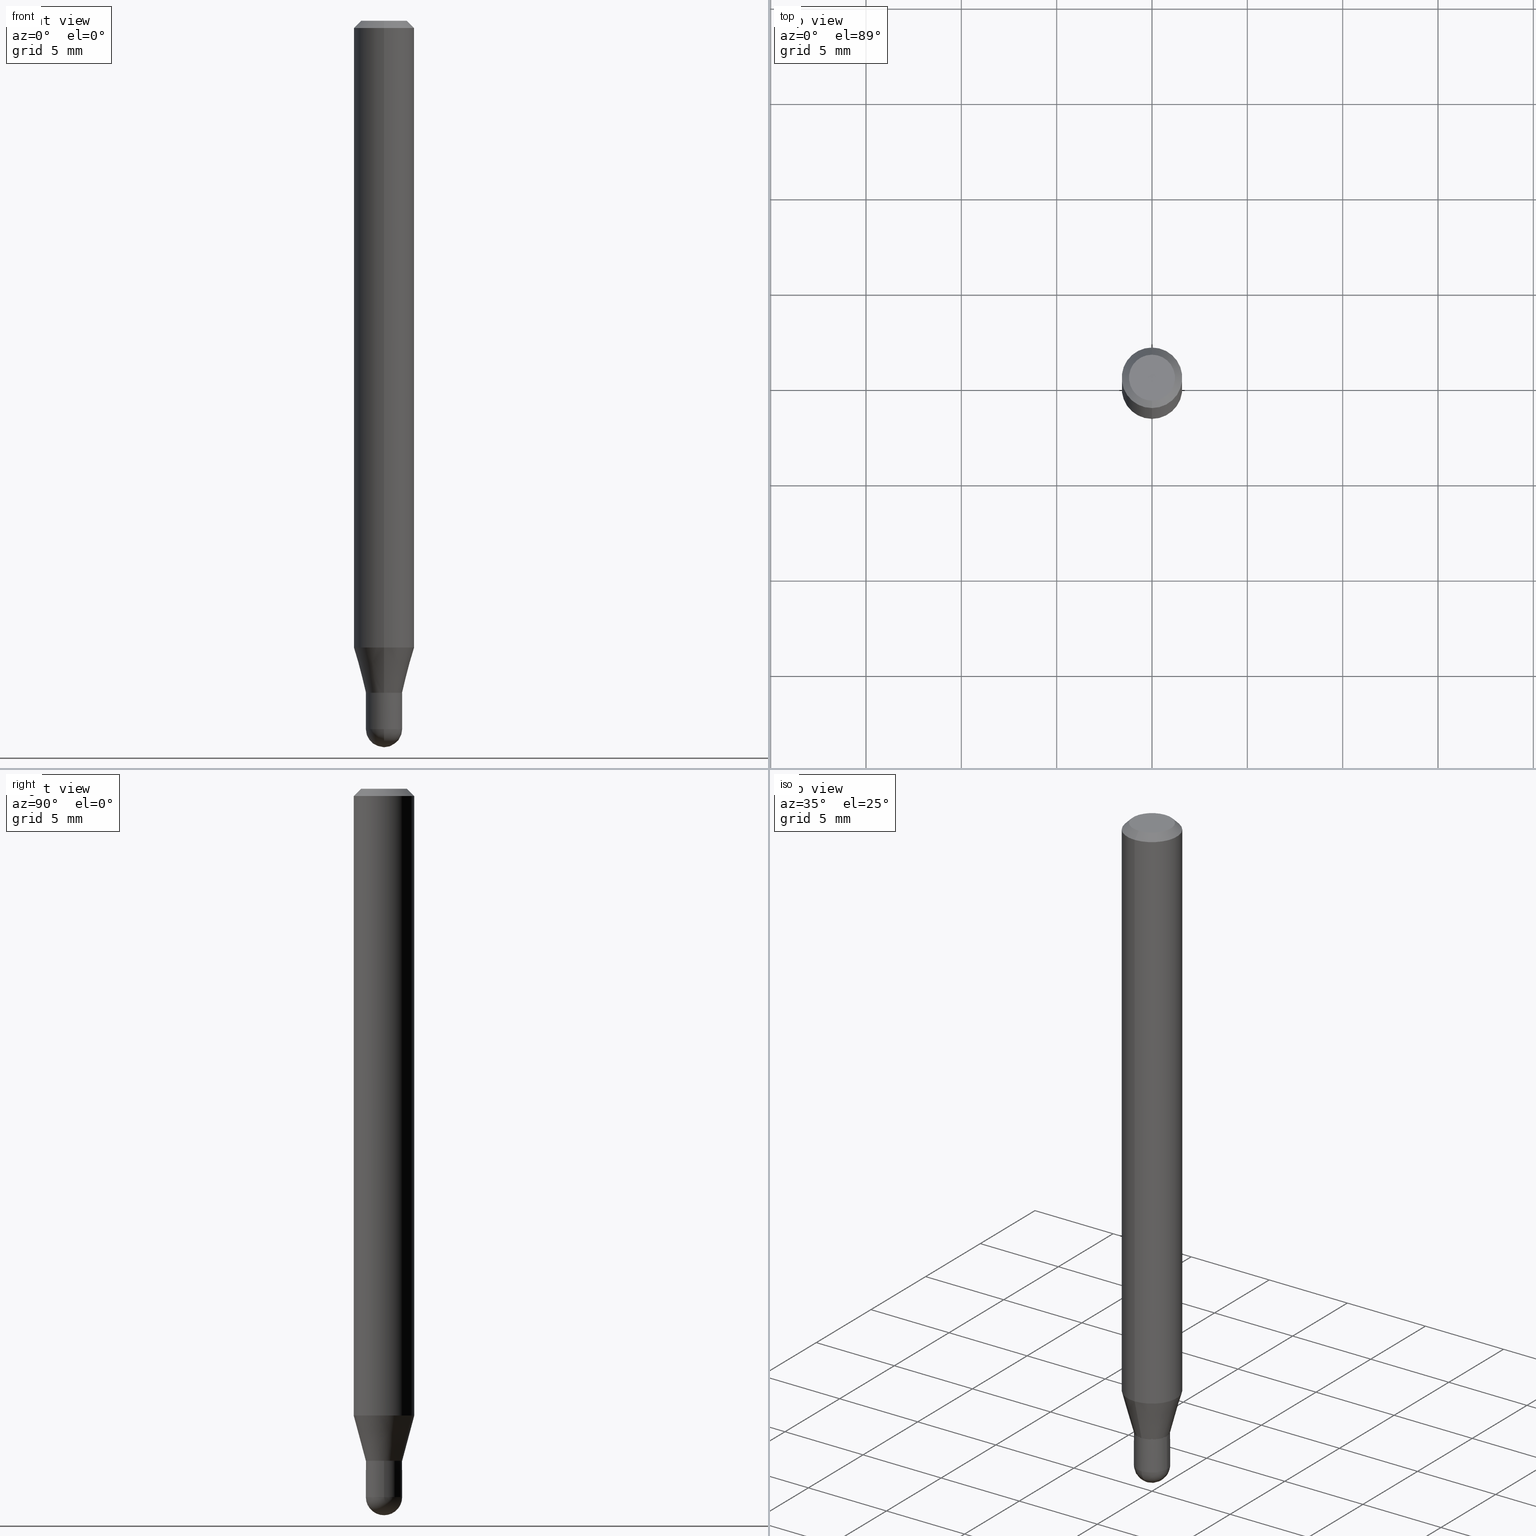
[diagram: canonical four-view strip — front | top / right | iso, engineering-drawing reading convention]
A machine part, canonical four-view strip (front | top / right | iso — engineering-drawing reading convention). The complete STEP part file that produces these views, byte-faithful:
ISO-10303-21;
HEADER;
FILE_DESCRIPTION (( 'STEP AP203' ),
    '1' );
FILE_NAME ('01421.STEP',
    '2024-03-07T20:39:07',
    ( '' ),
    ( '' ),
    'SwSTEP 2.0',
    'SolidWorks 2023',
    '' );
FILE_SCHEMA (( 'CONFIG_CONTROL_DESIGN' ));
ENDSEC;

DATA;
#1 = CARTESIAN_POINT ( 'NONE',  ( -2.583696190743578270E-16, -0.03700000000000483458, -1.387500000000000178 ) ) ;
#2 = VERTEX_POINT ( 'NONE', #26 ) ;
#3 = DIRECTION ( 'NONE',  ( 7.105427357601001859E-15, 1.000000000000000000, 0.000000000000000000 ) ) ;
#4 = ORIENTED_EDGE ( 'NONE', *, *, #382, .F. ) ;
#5 = AXIS2_PLACEMENT_3D ( 'NONE', #431, #33, #112 ) ;
#6 = VECTOR ( 'NONE', #462, 39.37007874015748143 ) ;
#7 = UNCERTAINTY_MEASURE_WITH_UNIT (LENGTH_MEASURE( 1.000000000000000082E-05 ), #63, 'distance_accuracy_value', 'NONE');
#8 = FACE_OUTER_BOUND ( 'NONE', #11, .T. ) ;
#9 = EDGE_LOOP ( 'NONE', ( #284, #276, #115, #368 ) ) ;
#10 = DIRECTION ( 'NONE',  ( -2.445468806185136877E-29, 3.491481338843145188E-15, 1.000000000000000000 ) ) ;
#11 = EDGE_LOOP ( 'NONE', ( #278, #373, #244, #175 ) ) ;
#12 = ORIENTED_EDGE ( 'NONE', *, *, #311, .F. ) ;
#13 = CONICAL_SURFACE ( 'NONE', #299, 0.03699999999999999123, 0.7853981633974781440 ) ;
#14 = DIRECTION ( 'NONE',  ( -2.445502103091854659E-29, 3.491433655777583102E-15, 1.000000000000000000 ) ) ;
#15 = CIRCLE ( 'NONE', #490, 0.03749999999999991535 ) ;
#16 = CARTESIAN_POINT ( 'NONE',  ( 2.664535259100708892E-16, 0.03749999999999507200, -1.387500000000000178 ) ) ;
#17 = EDGE_CURVE ( 'NONE', #122, #365, #19, .T. ) ;
#18 = MECHANICAL_CONTEXT ( 'NONE', #334, 'mechanical' ) ;
#19 = LINE ( 'NONE', #379, #319 ) ;
#20 = DIRECTION ( 'NONE',  ( -2.445502103091854659E-29, 3.491433655777583102E-15, 1.000000000000000000 ) ) ;
#21 = CARTESIAN_POINT ( 'NONE',  ( 3.576498129045762161E-29, -5.106291458058100676E-15, -1.462500000000000133 ) ) ;
#22 = EDGE_CURVE ( 'NONE', #52, #501, #340, .T. ) ;
#23 = MANIFOLD_SOLID_BREP ( 'Body-Move/Copy2[2]', #457 ) ;
#24 = LOCAL_TIME ( 15, 39, 7.000000000000000000, #176 ) ;
#25 = DIRECTION ( 'NONE',  ( -6.982962677686266711E-15, -1.000000000000000000, 3.491433655777582708E-15 ) ) ;
#26 = CARTESIAN_POINT ( 'NONE',  ( -2.618611004131998480E-16, -0.03750000000000520278, -1.462500000000000133 ) ) ;
#27 = ORIENTED_EDGE ( 'NONE', *, *, #504, .F. ) ;
#28 = APPROVAL_ROLE ( '' ) ;
#29 = LINE ( 'NONE', #16, #6 ) ;
#30 = FACE_OUTER_BOUND ( 'NONE', #50, .T. ) ;
#31 = PERSON_AND_ORGANIZATION_ROLE ( 'design_supplier' ) ;
#32 = DIRECTION ( 'NONE',  ( -2.445502103091854659E-29, 3.491433655777583102E-15, 1.000000000000000000 ) ) ;
#33 = DIRECTION ( 'NONE',  ( -2.445502103091854659E-29, 3.491433655777583102E-15, 1.000000000000000000 ) ) ;
#34 = DATE_AND_TIME ( #220, #128 ) ;
#35 = CARTESIAN_POINT ( 'NONE',  ( -3.773273898774340269E-16, -0.04749999999999999362, 1.569805141119898495E-16 ) ) ;
#36 = CARTESIAN_POINT ( 'NONE',  ( 3.840629472727447874E-16, 0.04749999999999999362, -1.747056831868805136E-16 ) ) ;
#37 = AXIS2_PLACEMENT_3D ( 'NONE', #203, #282, #356 ) ;
#38 = AXIS2_PLACEMENT_3D ( 'NONE', #84, #324, #235 ) ;
#39 = CARTESIAN_POINT ( 'NONE',  ( 3.668253154637784266E-31, -5.237150483666377464E-17, -0.01500000000000000812 ) ) ;
#40 = VERTEX_POINT ( 'NONE', #421 ) ;
#41 = CARTESIAN_POINT ( 'NONE',  ( 3.393134168039948742E-29, -4.844364197391397644E-15, -1.387500000000000178 ) ) ;
#42 = EDGE_LOOP ( 'NONE', ( #323, #447, #47, #225 ) ) ;
#43 = DIRECTION ( 'NONE',  ( -6.982962677686265133E-15, -1.000000000000000000, 0.000000000000000000 ) ) ;
#44 = ORIENTED_EDGE ( 'NONE', *, *, #311, .T. ) ;
#45 = CC_DESIGN_APPROVAL ( #369, ( #443 ) ) ;
#46 = CARTESIAN_POINT ( 'NONE',  ( 0.03749999999999999861, -2.618611004132350016E-16, 1.828566290923475922E-30 ) ) ;
#47 = ORIENTED_EDGE ( 'NONE', *, *, #61, .T. ) ;
#48 = EDGE_CURVE ( 'NONE', #333, #52, #294, .T. ) ;
#49 = LINE ( 'NONE', #402, #120 ) ;
#50 = EDGE_LOOP ( 'NONE', ( #12, #476, #83, #78 ) ) ;
#51 = APPLICATION_PROTOCOL_DEFINITION ( 'international standard', 'config_control_design', 1994, #85 ) ;
#52 = VERTEX_POINT ( 'NONE', #384 ) ;
#53 = AXIS2_PLACEMENT_3D ( 'NONE', #349, #104, #232 ) ;
#54 =( NAMED_UNIT ( * ) SI_UNIT ( $, .STERADIAN. ) SOLID_ANGLE_UNIT ( ) );
#55 = CIRCLE ( 'NONE', #301, 0.04749999999999999362 ) ;
#56 = ORIENTED_EDGE ( 'NONE', *, *, #305, .F. ) ;
#57 = EDGE_CURVE ( 'NONE', #40, #381, #29, .T. ) ;
#58 = APPLICATION_PROTOCOL_DEFINITION ( 'international standard', 'config_control_design', 1994, #334 ) ;
#59 = ORIENTED_EDGE ( 'NONE', *, *, #48, .T. ) ;
#60 = ORIENTED_EDGE ( 'NONE', *, *, #131, .F. ) ;
#61 = EDGE_CURVE ( 'NONE', #333, #163, #92, .T. ) ;
#62 = PRODUCT_DEFINITION_FORMATION_WITH_SPECIFIED_SOURCE ( 'ANY', '', #483, .NOT_KNOWN. ) ;
#63 =( CONVERSION_BASED_UNIT ( 'INCH', #95 ) LENGTH_UNIT ( ) NAMED_UNIT ( #271 ) );
#64 = DIRECTION ( 'NONE',  ( -6.982962677686265922E-15, -1.000000000000000000, 4.370956789862821150E-15 ) ) ;
#65 = CYLINDRICAL_SURFACE ( 'NONE', #145, 0.03749999999999999861 ) ;
#66 = ORIENTED_EDGE ( 'NONE', *, *, #412, .F. ) ;
#67 = CALENDAR_DATE ( 2024, 7, 3 ) ;
#68 = FACE_OUTER_BOUND ( 'NONE', #370, .T. ) ;
#69 = AXIS2_PLACEMENT_3D ( 'NONE', #167, #290, #303 ) ;
#70 = DIRECTION ( 'NONE',  ( -2.445502103091854659E-29, 3.491433655777583102E-15, 1.000000000000000000 ) ) ;
#71 = LOCAL_TIME ( 15, 39, 7.000000000000000000, #132 ) ;
#72 = DATE_TIME_ROLE ( 'creation_date' ) ;
#73 = EDGE_CURVE ( 'NONE', #122, #2, #364, .T. ) ;
#74 = DIRECTION ( 'NONE',  ( 1.000000000000000000, -6.982962677686265922E-15, 4.883557194083112901E-29 ) ) ;
#75 = SPHERICAL_SURFACE ( 'NONE', #398, 0.03750000000000017902 ) ;
#76 = EDGE_CURVE ( 'NONE', #270, #193, #434, .T. ) ;
#77 = DIRECTION ( 'NONE',  ( -2.445502103091854659E-29, 3.491433655777583102E-15, 1.000000000000000000 ) ) ;
#78 = ORIENTED_EDGE ( 'NONE', *, *, #210, .F. ) ;
#79 = CIRCLE ( 'NONE', #374, 0.06250000000000000000 ) ;
#80 = CARTESIAN_POINT ( 'NONE',  ( 0.000000000000000000, 0.000000000000000000, 0.000000000000000000 ) ) ;
#81 = ORIENTED_EDGE ( 'NONE', *, *, #76, .T. ) ;
#82 = CARTESIAN_POINT ( 'NONE',  ( 3.393134168039948742E-29, -4.844364197391397644E-15, -1.387500000000000178 ) ) ;
#83 = ORIENTED_EDGE ( 'NONE', *, *, #73, .F. ) ;
#84 = CARTESIAN_POINT ( 'NONE',  ( 0.000000000000000000, 0.000000000000000000, 0.000000000000000000 ) ) ;
#85 = APPLICATION_CONTEXT ( 'configuration controlled 3d designs of mechanical parts and assemblies' ) ;
#86 = ORIENTED_EDGE ( 'NONE', *, *, #408, .F. ) ;
#87 = LINE ( 'NONE', #46, #392 ) ;
#88 = EDGE_LOOP ( 'NONE', ( #96, #499 ) ) ;
#89 = EDGE_CURVE ( 'NONE', #52, #381, #165, .T. ) ;
#90 = DIRECTION ( 'NONE',  ( -2.445468806185136597E-29, 3.491481338843145583E-15, 1.000000000000000000 ) ) ;
#91 = DIRECTION ( 'NONE',  ( 1.000000000000000000, -6.982962677686268288E-15, 0.000000000000000000 ) ) ;
#92 = LINE ( 'NONE', #452, #293 ) ;
#93 = AXIS2_PLACEMENT_3D ( 'NONE', #221, #417, #98 ) ;
#94 = VECTOR ( 'NONE', #174, 39.37007874015748143 ) ;
#95 = LENGTH_MEASURE_WITH_UNIT ( LENGTH_MEASURE( 0.02539999999999999897 ), #256 );
#96 = ORIENTED_EDGE ( 'NONE', *, *, #149, .F. ) ;
#97 = DIRECTION ( 'NONE',  ( 2.445502103091854099E-29, -3.491433655777583497E-15, -1.000000000000000000 ) ) ;
#98 = DIRECTION ( 'NONE',  ( -6.982962677686265922E-15, -1.000000000000000000, 0.000000000000000000 ) ) ;
#99 = CARTESIAN_POINT ( 'NONE',  ( 3.393087968581877252E-29, -4.844430357644865674E-15, -1.387500000000000178 ) ) ;
#100 = DIRECTION ( 'NONE',  ( -2.445468806185136597E-29, 3.491481338843145583E-15, 1.000000000000000000 ) ) ;
#101 = ORIENTED_EDGE ( 'NONE', *, *, #297, .T. ) ;
#102 = AXIS2_PLACEMENT_3D ( 'NONE', #456, #177, #64 ) ;
#103 = COORDINATED_UNIVERSAL_TIME_OFFSET ( 5, 0, .BEHIND. ) ;
#104 = DIRECTION ( 'NONE',  ( -2.445468806185136597E-29, 3.491481338843145583E-15, 1.000000000000000000 ) ) ;
#105 = AXIS2_PLACEMENT_3D ( 'NONE', #511, #224, #185 ) ;
#106 = CC_DESIGN_DATE_AND_TIME_ASSIGNMENT ( #502, #263, ( #443 ) ) ;
#107 = ORIENTED_EDGE ( 'NONE', *, *, #500, .F. ) ;
#108 = DIRECTION ( 'NONE',  ( -2.445468806185136597E-29, 3.491481338843145583E-15, 1.000000000000000000 ) ) ;
#109 = PERSON_AND_ORGANIZATION ( #125, #498 ) ;
#110 = CARTESIAN_POINT ( 'NONE',  ( 3.393134168039948742E-29, -4.844364197391397644E-15, -1.387500000000000178 ) ) ;
#111 =( GEOMETRIC_REPRESENTATION_CONTEXT ( 3 ) GLOBAL_UNCERTAINTY_ASSIGNED_CONTEXT ( ( #7 ) ) GLOBAL_UNIT_ASSIGNED_CONTEXT ( ( #63, #495, #54 ) ) REPRESENTATION_CONTEXT ( 'NONE', 'WORKASPACE' ) );
#112 = DIRECTION ( 'NONE',  ( -6.982962677686265133E-15, -1.000000000000000000, 0.000000000000000000 ) ) ;
#113 = APPROVAL_DATE_TIME ( #34, #279 ) ;
#114 = DIRECTION ( 'NONE',  ( 1.000000000000000000, -6.982962677686265922E-15, 4.883557194083112901E-29 ) ) ;
#115 = ORIENTED_EDGE ( 'NONE', *, *, #480, .T. ) ;
#116 = CARTESIAN_POINT ( 'NONE',  ( 4.440892098500944664E-16, 0.06249999999999995143, -0.01500000000000022669 ) ) ;
#117 = DIRECTION ( 'NONE',  ( -6.982962677686265922E-15, -1.000000000000000000, 3.483106191921935554E-15 ) ) ;
#118 = CONICAL_SURFACE ( 'NONE', #416, 0.03699999999999999123, 0.7853981633974781440 ) ;
#119 = VERTEX_POINT ( 'NONE', #171 ) ;
#120 = VECTOR ( 'NONE', #439, 39.37007874015748854 ) ;
#121 = LINE ( 'NONE', #313, #243 ) ;
#122 = VERTEX_POINT ( 'NONE', #420 ) ;
#123 = CARTESIAN_POINT ( 'NONE',  ( 3.668253154637784266E-31, -5.237150483666377464E-17, -0.01500000000000000812 ) ) ;
#124 = EDGE_LOOP ( 'NONE', ( #405, #161, #56, #403 ) ) ;
#125 = PERSON ( 'UNSPECIFIED', 'UNSPECIFIED', 'UNSPECIFIED', ('UNSPECIFIED'), ('UNSPECIFIED'), ('UNSPECIFIED') ) ;
#126 = LINE ( 'NONE', #1, #156 ) ;
#127 = ORIENTED_EDGE ( 'NONE', *, *, #262, .F. ) ;
#128 = LOCAL_TIME ( 15, 39, 7.000000000000000000, #510 ) ;
#129 = DIRECTION ( 'NONE',  ( 1.000000000000000000, -6.982962677686268288E-15, 0.000000000000000000 ) ) ;
#130 = ORIENTED_EDGE ( 'NONE', *, *, #314, .T. ) ;
#131 = EDGE_CURVE ( 'NONE', #119, #2, #436, .T. ) ;
#132 = COORDINATED_UNIVERSAL_TIME_OFFSET ( 5, 0, .BEHIND. ) ;
#133 = FACE_OUTER_BOUND ( 'NONE', #482, .T. ) ;
#134 = FACE_OUTER_BOUND ( 'NONE', #124, .T. ) ;
#135 = CARTESIAN_POINT ( 'NONE',  ( 3.576498129045762161E-29, -5.106291458058100676E-15, -1.462500000000000133 ) ) ;
#136 = AXIS2_PLACEMENT_3D ( 'NONE', #80, #238, #378 ) ;
#137 = ORIENTED_EDGE ( 'NONE', *, *, #401, .F. ) ;
#138 = LINE ( 'NONE', #253, #94 ) ;
#139 = VERTEX_POINT ( 'NONE', #342 ) ;
#140 = APPROVAL_DATE_TIME ( #308, #369 ) ;
#141 = FACE_OUTER_BOUND ( 'NONE', #357, .T. ) ;
#142 = ADVANCED_FACE ( 'NONE', ( #133 ), #503, .T. ) ;
#143 = CONICAL_SURFACE ( 'NONE', #207, 0.03749999999999991535, 0.2617993877991579565 ) ;
#144 = DIRECTION ( 'NONE',  ( -2.445502103091854659E-29, 3.491433655777583102E-15, 1.000000000000000000 ) ) ;
#145 = AXIS2_PLACEMENT_3D ( 'NONE', #466, #468, #230 ) ;
#146 = FACE_OUTER_BOUND ( 'NONE', #320, .T. ) ;
#147 = CARTESIAN_POINT ( 'NONE',  ( 2.664535259100738967E-16, 0.03749999999999498179, -1.462500000000000133 ) ) ;
#148 = CC_DESIGN_PERSON_AND_ORGANIZATION_ASSIGNMENT ( #413, #205, ( #483 ) ) ;
#149 = EDGE_CURVE ( 'NONE', #139, #479, #330, .T. ) ;
#150 = DIRECTION ( 'NONE',  ( -1.000000000000000000, 6.982962677686265922E-15, -4.876176775795935793E-29 ) ) ;
#151 = DIRECTION ( 'NONE',  ( -2.445502103091854659E-29, 3.491433655777583102E-15, 1.000000000000000000 ) ) ;
#152 = PRODUCT_DEFINITION ( 'UNKNOWN', '', #62, #366 ) ;
#153 = DIRECTION ( 'NONE',  ( 6.982962677686265922E-15, 1.000000000000000000, -3.483106191921935554E-15 ) ) ;
#154 = ORIENTED_EDGE ( 'NONE', *, *, #252, .F. ) ;
#155 = CARTESIAN_POINT ( 'NONE',  ( 3.393134168039948742E-29, -4.844364197391397644E-15, -1.387500000000000178 ) ) ;
#156 = VECTOR ( 'NONE', #445, 39.37007874015748143 ) ;
#157 = ORIENTED_EDGE ( 'NONE', *, *, #305, .T. ) ;
#158 = CARTESIAN_POINT ( 'NONE',  ( 3.573291255461339313E-29, -5.110883883554903875E-15, -1.462500000000000133 ) ) ;
#159 = ORIENTED_EDGE ( 'NONE', *, *, #401, .T. ) ;
#160 = FACE_OUTER_BOUND ( 'NONE', #411, .T. ) ;
#161 = ORIENTED_EDGE ( 'NONE', *, *, #408, .T. ) ;
#162 = CARTESIAN_POINT ( 'NONE',  ( 0.000000000000000000, 0.000000000000000000, 0.000000000000000000 ) ) ;
#163 = VERTEX_POINT ( 'NONE', #312 ) ;
#164 = AXIS2_PLACEMENT_3D ( 'NONE', #395, #70, #234 ) ;
#165 = CIRCLE ( 'NONE', #102, 0.06250000000000000000 ) ;
#166 = APPROVAL_STATUS ( 'not_yet_approved' ) ;
#167 = CARTESIAN_POINT ( 'NONE',  ( 3.393134168039948742E-29, -4.844364197391397644E-15, -1.387500000000000178 ) ) ;
#168 = CALENDAR_DATE ( 2024, 7, 3 ) ;
#169 = CARTESIAN_POINT ( 'NONE',  ( -4.364351673553916201E-16, -0.06250000000000000000, 2.182146034860989193E-16 ) ) ;
#170 = PERSON_AND_ORGANIZATION ( #125, #498 ) ;
#171 = CARTESIAN_POINT ( 'NONE',  ( 3.663392898901070905E-29, -5.244110646509923764E-15, -1.500000000000000222 ) ) ;
#172 = EDGE_CURVE ( 'NONE', #479, #139, #465, .T. ) ;
#173 = CC_DESIGN_APPROVAL ( #279, ( #62 ) ) ;
#174 = DIRECTION ( 'NONE',  ( 4.937700262164548042E-15, 0.7071067811865451302, -0.7071067811865499042 ) ) ;
#175 = ORIENTED_EDGE ( 'NONE', *, *, #48, .F. ) ;
#176 = COORDINATED_UNIVERSAL_TIME_OFFSET ( 5, 0, .BEHIND. ) ;
#177 = DIRECTION ( 'NONE',  ( -2.445502103091854659E-29, 3.491433655777583102E-15, 1.000000000000000000 ) ) ;
#178 = SHAPE_DEFINITION_REPRESENTATION ( #446, #254 ) ;
#179 = DIRECTION ( 'NONE',  ( -6.982962677686265922E-15, -1.000000000000000000, 4.370956789862821150E-15 ) ) ;
#180 = VERTEX_POINT ( 'NONE', #36 ) ;
#181 = AXIS2_PLACEMENT_3D ( 'NONE', #194, #478, #441 ) ;
#182 = AXIS2_PLACEMENT_3D ( 'NONE', #289, #376, #91 ) ;
#183 = PERSON_AND_ORGANIZATION ( #125, #498 ) ;
#184 = CARTESIAN_POINT ( 'NONE',  ( 3.393134168039948742E-29, -4.844364197391397644E-15, -1.387500000000000178 ) ) ;
#185 = DIRECTION ( 'NONE',  ( -6.982962677686265922E-15, -1.000000000000000000, 3.483106191921935554E-15 ) ) ;
#186 = APPROVAL ( #166, 'UNSPECIFIED' ) ;
#187 = PERSON_AND_ORGANIZATION_ROLE ( 'creator' ) ;
#188 = CARTESIAN_POINT ( 'NONE',  ( 3.393087968581877252E-29, -4.844430357644865674E-15, -1.387500000000000178 ) ) ;
#189 = ADVANCED_FACE ( 'NONE', ( #190 ), #388, .F. ) ;
#190 = FACE_OUTER_BOUND ( 'NONE', #332, .T. ) ;
#191 = AXIS2_PLACEMENT_3D ( 'NONE', #266, #354, #261 ) ;
#192 = DIRECTION ( 'NONE',  ( 2.445502103091854659E-29, -3.491433655777583102E-15, -1.000000000000000000 ) ) ;
#193 = VERTEX_POINT ( 'NONE', #147 ) ;
#194 = CARTESIAN_POINT ( 'NONE',  ( 3.393134168039948742E-29, -4.844364197391397644E-15, -1.387500000000000178 ) ) ;
#195 = ORIENTED_EDGE ( 'NONE', *, *, #149, .T. ) ;
#196 = CARTESIAN_POINT ( 'NONE',  ( 0.03749999999999999861, -5.106291458058100676E-15, -1.387500000000000178 ) ) ;
#197 = AXIS2_PLACEMENT_3D ( 'NONE', #424, #144, #179 ) ;
#198 = APPROVAL_PERSON_ORGANIZATION ( #353, #279, #28 ) ;
#199 = ORIENTED_EDGE ( 'NONE', *, *, #172, .T. ) ;
#200 = DIRECTION ( 'NONE',  ( -2.445502103091854659E-29, 3.491433655777583102E-15, 1.000000000000000000 ) ) ;
#201 = ORIENTED_EDGE ( 'NONE', *, *, #480, .F. ) ;
#202 = ADVANCED_FACE ( 'NONE', ( #30 ), #351, .T. ) ;
#203 = CARTESIAN_POINT ( 'NONE',  ( 2.167346912515190194E-46, -3.094312593121061919E-32, -8.862584537445327424E-18 ) ) ;
#204 = ORIENTED_EDGE ( 'NONE', *, *, #500, .T. ) ;
#205 = PERSON_AND_ORGANIZATION_ROLE ( 'design_owner' ) ;
#206 = ORIENTED_EDGE ( 'NONE', *, *, #252, .T. ) ;
#207 = AXIS2_PLACEMENT_3D ( 'NONE', #41, #151, #322 ) ;
#208 = AXIS2_PLACEMENT_3D ( 'NONE', #295, #14, #492 ) ;
#209 = AXIS2_PLACEMENT_3D ( 'NONE', #450, #90, #249 ) ;
#210 = EDGE_CURVE ( 'NONE', #193, #122, #391, .T. ) ;
#211 = CYLINDRICAL_SURFACE ( 'NONE', #327, 0.03749999999999991535 ) ;
#212 = ORIENTED_EDGE ( 'NONE', *, *, #17, .T. ) ;
#213 = ADVANCED_FACE ( 'NONE', ( #141 ), #229, .T. ) ;
#214 = DATE_AND_TIME ( #168, #71 ) ;
#215 = DIRECTION ( 'NONE',  ( -2.445502103091854939E-29, 3.491433655777583497E-15, 1.000000000000000000 ) ) ;
#216 = DIRECTION ( 'NONE',  ( 6.982962677686265922E-15, 1.000000000000000000, -3.491433655777583497E-15 ) ) ;
#217 = ORIENTED_EDGE ( 'NONE', *, *, #329, .T. ) ;
#218 = ADVANCED_FACE ( 'NONE', ( #146 ), #454, .T. ) ;
#219 = ORIENTED_EDGE ( 'NONE', *, *, #264, .F. ) ;
#220 = CALENDAR_DATE ( 2024, 7, 3 ) ;
#221 = CARTESIAN_POINT ( 'NONE',  ( 3.573291255461339313E-29, -5.110883883554903875E-15, -1.462500000000000133 ) ) ;
#222 = EDGE_LOOP ( 'NONE', ( #195, #130, #66, #137 ) ) ;
#223 = APPROVAL_ROLE ( '' ) ;
#224 = DIRECTION ( 'NONE',  ( -2.445502103091854659E-29, 3.491433655777583102E-15, 1.000000000000000000 ) ) ;
#225 = ORIENTED_EDGE ( 'NONE', *, *, #412, .T. ) ;
#226 = ADVANCED_FACE ( 'NONE', ( #307 ), #505, .F. ) ;
#227 = DATE_AND_TIME ( #67, #274 ) ;
#228 = CARTESIAN_POINT ( 'NONE',  ( 2.167346912515190194E-46, -3.094312593121061919E-32, -8.862584537445327424E-18 ) ) ;
#229 = CONICAL_SURFACE ( 'NONE', #191, 0.06250000000000000000, 0.7853981633974483900 ) ;
#230 = DIRECTION ( 'NONE',  ( 1.000000000000000000, -6.982962677686266711E-15, 4.876176775795935793E-29 ) ) ;
#231 = CALENDAR_DATE ( 2024, 7, 3 ) ;
#232 = DIRECTION ( 'NONE',  ( 1.000000000000000000, -6.982962677686268288E-15, 0.000000000000000000 ) ) ;
#233 = ADVANCED_FACE ( 'NONE', ( #469 ), #65, .T. ) ;
#234 = DIRECTION ( 'NONE',  ( -6.982962677686266711E-15, -1.000000000000000000, 0.000000000000000000 ) ) ;
#235 = DIRECTION ( 'NONE',  ( -6.982962677686266711E-15, -1.000000000000000000, 3.491433655777582708E-15 ) ) ;
#236 = AXIS2_PLACEMENT_3D ( 'NONE', #110, #509, #259 ) ;
#237 = ORIENTED_EDGE ( 'NONE', *, *, #321, .F. ) ;
#238 = DIRECTION ( 'NONE',  ( -2.445502103091854659E-29, 3.491433655777583102E-15, 1.000000000000000000 ) ) ;
#239 = ORIENTED_EDGE ( 'NONE', *, *, #61, .F. ) ;
#240 = CARTESIAN_POINT ( 'NONE',  ( 4.440892098500939734E-16, 0.06249999999999544809, -1.294198729810781323 ) ) ;
#241 = ORIENTED_EDGE ( 'NONE', *, *, #245, .T. ) ;
#242 = DIRECTION ( 'NONE',  ( -2.445502103091854939E-29, 3.491433655777583497E-15, 1.000000000000000000 ) ) ;
#243 = VECTOR ( 'NONE', #363, 39.37007874015748143 ) ;
#244 = ORIENTED_EDGE ( 'NONE', *, *, #89, .F. ) ;
#245 = EDGE_CURVE ( 'NONE', #40, #333, #15, .T. ) ;
#246 = CARTESIAN_POINT ( 'NONE',  ( -0.03749999999999999861, -4.708907381941446552E-15, -1.387500000000000178 ) ) ;
#247 = VERTEX_POINT ( 'NONE', #35 ) ;
#248 = ORIENTED_EDGE ( 'NONE', *, *, #314, .F. ) ;
#249 = DIRECTION ( 'NONE',  ( 1.000000000000000000, -6.982962677686266711E-15, 4.876176775795935793E-29 ) ) ;
#250 = AXIS2_PLACEMENT_3D ( 'NONE', #188, #108, #425 ) ;
#251 = EDGE_LOOP ( 'NONE', ( #400, #212, #491, #4, #81 ) ) ;
#252 = EDGE_CURVE ( 'NONE', #381, #52, #487, .T. ) ;
#253 = CARTESIAN_POINT ( 'NONE',  ( 4.364351673553919652E-16, 0.06249999999999995143, -0.01500000000000022669 ) ) ;
#254 = ADVANCED_BREP_SHAPE_REPRESENTATION ( '01421', ( #358, #23, #428 ), #111 ) ;
#255 = DIRECTION ( 'NONE',  ( 1.000000000000000000, -6.982962677686268288E-15, 0.000000000000000000 ) ) ;
#256 =( LENGTH_UNIT ( ) NAMED_UNIT ( * ) SI_UNIT ( $, .METRE. ) );
#257 = ORIENTED_EDGE ( 'NONE', *, *, #382, .T. ) ;
#258 = CIRCLE ( 'NONE', #347, 0.03750000000000017902 ) ;
#259 = DIRECTION ( 'NONE',  ( -6.982962677686265922E-15, -1.000000000000000000, 3.491433655777583497E-15 ) ) ;
#260 = ORIENTED_EDGE ( 'NONE', *, *, #76, .F. ) ;
#261 = DIRECTION ( 'NONE',  ( 6.982962677686265922E-15, 1.000000000000000000, -3.483106191921935554E-15 ) ) ;
#262 = EDGE_CURVE ( 'NONE', #486, #163, #507, .T. ) ;
#263 = DATE_TIME_ROLE ( 'classification_date' ) ;
#264 = EDGE_CURVE ( 'NONE', #438, #501, #423, .T. ) ;
#265 = DIRECTION ( 'NONE',  ( -6.982962677686266711E-15, -1.000000000000000000, 0.000000000000000000 ) ) ;
#266 = CARTESIAN_POINT ( 'NONE',  ( 3.668253154637784266E-31, -5.237150483666377464E-17, -0.01500000000000000812 ) ) ;
#267 = PERSON_AND_ORGANIZATION_ROLE ( 'classification_officer' ) ;
#268 = PRODUCT_RELATED_PRODUCT_CATEGORY ( 'detail', '', ( #483 ) ) ;
#269 = CARTESIAN_POINT ( 'NONE',  ( 3.393134168039948742E-29, -4.844364197391397644E-15, -1.387500000000000178 ) ) ;
#270 = VERTEX_POINT ( 'NONE', #471 ) ;
#271 = DIMENSIONAL_EXPONENTS ( 1.000000000000000000, 0.000000000000000000, 0.000000000000000000, 0.000000000000000000, 0.000000000000000000, 0.000000000000000000, 0.000000000000000000 ) ;
#272 = FACE_OUTER_BOUND ( 'NONE', #9, .T. ) ;
#273 = CIRCLE ( 'NONE', #250, 0.03749999999999999861 ) ;
#274 = LOCAL_TIME ( 15, 39, 7.000000000000000000, #103 ) ;
#275 = CARTESIAN_POINT ( 'NONE',  ( -2.618611004132004397E-16, -0.03750000000000475869, -1.387500000000000178 ) ) ;
#276 = ORIENTED_EDGE ( 'NONE', *, *, #297, .F. ) ;
#277 = DIRECTION ( 'NONE',  ( 1.000000000000000000, -7.105427357601001070E-15, 4.926315508542082329E-29 ) ) ;
#278 = ORIENTED_EDGE ( 'NONE', *, *, #375, .T. ) ;
#279 = APPROVAL ( #383, 'UNSPECIFIED' ) ;
#280 = DIRECTION ( 'NONE',  ( -6.982962677686265133E-15, -1.000000000000000000, 0.000000000000000000 ) ) ;
#281 = ORIENTED_EDGE ( 'NONE', *, *, #245, .F. ) ;
#282 = DIRECTION ( 'NONE',  ( -2.445502103091854659E-29, 3.491433655777583102E-15, 1.000000000000000000 ) ) ;
#283 = AXIS2_PLACEMENT_3D ( 'NONE', #99, #451, #129 ) ;
#284 = ORIENTED_EDGE ( 'NONE', *, *, #415, .F. ) ;
#285 = PLANE ( 'NONE',  #317 ) ;
#286 = EDGE_CURVE ( 'NONE', #414, #365, #273, .T. ) ;
#287 = DIRECTION ( 'NONE',  ( -2.445468806185136877E-29, 3.491481338843145188E-15, 1.000000000000000000 ) ) ;
#288 = ADVANCED_FACE ( 'NONE', ( #68 ), #75, .T. ) ;
#289 = CARTESIAN_POINT ( 'NONE',  ( 3.576498129045762161E-29, -5.106291458058100676E-15, -1.462500000000000133 ) ) ;
#290 = DIRECTION ( 'NONE',  ( -2.445502103091854659E-29, 3.491433655777583102E-15, 1.000000000000000000 ) ) ;
#291 = CARTESIAN_POINT ( 'NONE',  ( -4.364351673553912750E-16, -0.06250000000000005551, -0.01499999999999979128 ) ) ;
#292 = DIRECTION ( 'NONE',  ( 1.000000000000000000, -6.982962677686268288E-15, 0.000000000000000000 ) ) ;
#293 = VECTOR ( 'NONE', #215, 39.37007874015748143 ) ;
#294 = LINE ( 'NONE', #296, #393 ) ;
#295 = CARTESIAN_POINT ( 'NONE',  ( 0.000000000000000000, 0.000000000000000000, 0.000000000000000000 ) ) ;
#296 = CARTESIAN_POINT ( 'NONE',  ( -2.618611004132004397E-16, -0.03750000000000475869, -1.387500000000000178 ) ) ;
#297 = EDGE_CURVE ( 'NONE', #180, #247, #55, .T. ) ;
#298 = DIRECTION ( 'NONE',  ( -2.445502103091854659E-29, 3.491433655777583102E-15, 1.000000000000000000 ) ) ;
#299 = AXIS2_PLACEMENT_3D ( 'NONE', #82, #77, #315 ) ;
#300 = CIRCLE ( 'NONE', #283, 0.03749999999999999861 ) ;
#301 = AXIS2_PLACEMENT_3D ( 'NONE', #228, #32, #485 ) ;
#302 = COORDINATED_UNIVERSAL_TIME_OFFSET ( 5, 0, .BEHIND. ) ;
#303 = DIRECTION ( 'NONE',  ( -6.982962677686265133E-15, -1.000000000000000000, 0.000000000000000000 ) ) ;
#304 = CC_DESIGN_PERSON_AND_ORGANIZATION_ASSIGNMENT ( #183, #267, ( #443 ) ) ;
#305 = EDGE_CURVE ( 'NONE', #501, #438, #79, .T. ) ;
#306 = PERSON_AND_ORGANIZATION_ROLE ( 'creator' ) ;
#307 = FACE_OUTER_BOUND ( 'NONE', #88, .T. ) ;
#308 = DATE_AND_TIME ( #231, #24 ) ;
#309 = DIRECTION ( 'NONE',  ( -6.982962677686265133E-15, -1.000000000000000000, 0.000000000000000000 ) ) ;
#310 = CC_DESIGN_SECURITY_CLASSIFICATION ( #443, ( #62 ) ) ;
#311 = EDGE_CURVE ( 'NONE', #119, #193, #258, .T. ) ;
#312 = CARTESIAN_POINT ( 'NONE',  ( -2.618611004132013764E-16, -0.03750000000000489053, -1.387000000000000233 ) ) ;
#313 = CARTESIAN_POINT ( 'NONE',  ( -4.287811248607203282E-16, -0.06250000000000005551, -0.01499999999999979128 ) ) ;
#314 = EDGE_CURVE ( 'NONE', #479, #486, #49, .T. ) ;
#315 = DIRECTION ( 'NONE',  ( -6.982962677686265133E-15, -1.000000000000000000, 0.000000000000000000 ) ) ;
#316 = EDGE_LOOP ( 'NONE', ( #86, #206, #440, #219 ) ) ;
#317 = AXIS2_PLACEMENT_3D ( 'NONE', #489, #97, #216 ) ;
#318 = DIRECTION ( 'NONE',  ( -2.445502103091854939E-29, 3.491433655777583497E-15, 1.000000000000000000 ) ) ;
#319 = VECTOR ( 'NONE', #287, 39.37007874015748143 ) ;
#320 = EDGE_LOOP ( 'NONE', ( #433, #241, #59, #154 ) ) ;
#321 = EDGE_CURVE ( 'NONE', #247, #180, #463, .T. ) ;
#322 = DIRECTION ( 'NONE',  ( -6.982962677686266711E-15, -1.000000000000000000, 0.000000000000000000 ) ) ;
#323 = ORIENTED_EDGE ( 'NONE', *, *, #329, .F. ) ;
#324 = DIRECTION ( 'NONE',  ( -2.445502103091854659E-29, 3.491433655777583102E-15, 1.000000000000000000 ) ) ;
#325 = ORIENTED_EDGE ( 'NONE', *, *, #262, .T. ) ;
#326 = VECTOR ( 'NONE', #242, 39.37007874015748143 ) ;
#327 = AXIS2_PLACEMENT_3D ( 'NONE', #380, #20, #25 ) ;
#328 = ORIENTED_EDGE ( 'NONE', *, *, #286, .T. ) ;
#329 = EDGE_CURVE ( 'NONE', #40, #486, #432, .T. ) ;
#330 = CIRCLE ( 'NONE', #69, 0.03699999999999999123 ) ;
#331 = CYLINDRICAL_SURFACE ( 'NONE', #208, 0.06250000000000000000 ) ;
#332 = EDGE_LOOP ( 'NONE', ( #328, #204 ) ) ;
#333 = VERTEX_POINT ( 'NONE', #275 ) ;
#334 = APPLICATION_CONTEXT ( 'configuration controlled 3d designs of mechanical parts and assemblies' ) ;
#335 = APPROVAL_ROLE ( '' ) ;
#336 = ORIENTED_EDGE ( 'NONE', *, *, #415, .T. ) ;
#337 = CIRCLE ( 'NONE', #182, 0.03749999999999999861 ) ;
#338 = CC_DESIGN_PERSON_AND_ORGANIZATION_ASSIGNMENT ( #386, #31, ( #62 ) ) ;
#339 = CARTESIAN_POINT ( 'NONE',  ( 2.664535259100699524E-16, 0.03749999999999494710, -1.387000000000000233 ) ) ;
#340 = LINE ( 'NONE', #169, #429 ) ;
#341 = APPROVAL_STATUS ( 'not_yet_approved' ) ;
#342 = CARTESIAN_POINT ( 'NONE',  ( -2.583696190743578270E-16, -0.03700000000000483458, -1.387500000000000178 ) ) ;
#343 = CARTESIAN_POINT ( 'NONE',  ( 3.573291255461339313E-29, -5.110883883554903875E-15, -1.462500000000000133 ) ) ;
#344 = CIRCLE ( 'NONE', #181, 0.03749999999999991535 ) ;
#345 = LOCAL_TIME ( 15, 39, 7.000000000000000000, #302 ) ;
#346 = CLOSED_SHELL ( 'NONE', ( #233, #288, #189, #202, #142 ) ) ;
#347 = AXIS2_PLACEMENT_3D ( 'NONE', #158, #277, #3 ) ;
#348 = CALENDAR_DATE ( 2024, 7, 3 ) ;
#349 = CARTESIAN_POINT ( 'NONE',  ( 3.576498129045762161E-29, -5.106291458058100676E-15, -1.462500000000000133 ) ) ;
#350 = PERSON_AND_ORGANIZATION ( #125, #498 ) ;
#351 = SPHERICAL_SURFACE ( 'NONE', #418, 0.03750000000000017902 ) ;
#352 = ADVANCED_FACE ( 'NONE', ( #367 ), #13, .T. ) ;
#353 = PERSON_AND_ORGANIZATION ( #125, #498 ) ;
#354 = DIRECTION ( 'NONE',  ( 2.445502103091854659E-29, -3.491433655777583102E-15, -1.000000000000000000 ) ) ;
#355 = ADVANCED_FACE ( 'NONE', ( #8 ), #143, .T. ) ;
#356 = DIRECTION ( 'NONE',  ( -6.982962677686266711E-15, -1.000000000000000000, 3.491433655777583102E-15 ) ) ;
#357 = EDGE_LOOP ( 'NONE', ( #237, #336, #157, #201 ) ) ;
#358 = MANIFOLD_SOLID_BREP ( 'Body-Move/Copy2[1]', #346 ) ;
#359 = DIRECTION ( 'NONE',  ( -2.445502103091854659E-29, 3.491433655777583102E-15, 1.000000000000000000 ) ) ;
#360 = ORIENTED_EDGE ( 'NONE', *, *, #321, .T. ) ;
#361 = ADVANCED_FACE ( 'NONE', ( #481 ), #118, .T. ) ;
#362 = VECTOR ( 'NONE', #318, 39.37007874015748143 ) ;
#363 = DIRECTION ( 'NONE',  ( -4.851104656540964275E-15, -0.7071067811865500152, -0.7071067811865450192 ) ) ;
#364 = CIRCLE ( 'NONE', #427, 0.03749999999999999861 ) ;
#365 = VERTEX_POINT ( 'NONE', #246 ) ;
#366 = DESIGN_CONTEXT ( 'detailed design', #85, 'design' ) ;
#367 = FACE_OUTER_BOUND ( 'NONE', #222, .T. ) ;
#368 = ORIENTED_EDGE ( 'NONE', *, *, #264, .T. ) ;
#369 = APPROVAL ( #341, 'UNSPECIFIED' ) ;
#370 = EDGE_LOOP ( 'NONE', ( #60, #44, #260, #27 ) ) ;
#371 = AXIS2_PLACEMENT_3D ( 'NONE', #184, #298, #309 ) ;
#372 = DIRECTION ( 'NONE',  ( 0.000000000000000000, 0.000000000000000000, 1.000000000000000000 ) ) ;
#373 = ORIENTED_EDGE ( 'NONE', *, *, #57, .T. ) ;
#374 = AXIS2_PLACEMENT_3D ( 'NONE', #123, #200, #117 ) ;
#375 = EDGE_CURVE ( 'NONE', #333, #40, #344, .T. ) ;
#376 = DIRECTION ( 'NONE',  ( -2.445468806185136597E-29, 3.491481338843145583E-15, 1.000000000000000000 ) ) ;
#377 = ORIENTED_EDGE ( 'NONE', *, *, #73, .T. ) ;
#378 = DIRECTION ( 'NONE',  ( -6.982962677686265922E-15, -1.000000000000000000, 3.491433655777582708E-15 ) ) ;
#379 = CARTESIAN_POINT ( 'NONE',  ( -0.03749999999999999861, 2.664535259100375598E-16, -1.844600658845589808E-30 ) ) ;
#380 = CARTESIAN_POINT ( 'NONE',  ( 0.000000000000000000, 0.000000000000000000, 0.000000000000000000 ) ) ;
#381 = VERTEX_POINT ( 'NONE', #240 ) ;
#382 = EDGE_CURVE ( 'NONE', #270, #414, #87, .T. ) ;
#383 = APPROVAL_STATUS ( 'not_yet_approved' ) ;
#384 = CARTESIAN_POINT ( 'NONE',  ( -4.364351673553602629E-16, -0.06250000000000455191, -1.294198729810780879 ) ) ;
#385 = EDGE_LOOP ( 'NONE', ( #248, #199, #159, #127 ) ) ;
#386 = PERSON_AND_ORGANIZATION ( #125, #498 ) ;
#387 = ADVANCED_FACE ( 'NONE', ( #160 ), #473, .F. ) ;
#388 = PLANE ( 'NONE',  #397 ) ;
#389 = SECURITY_CLASSIFICATION_LEVEL ( 'unclassified' ) ;
#390 = DIRECTION ( 'NONE',  ( -6.982962677686265922E-15, -1.000000000000000000, 0.000000000000000000 ) ) ;
#391 = CIRCLE ( 'NONE', #53, 0.03749999999999999861 ) ;
#392 = VECTOR ( 'NONE', #10, 39.37007874015748143 ) ;
#393 = VECTOR ( 'NONE', #496, 39.37007874015748143 ) ;
#394 = DIRECTION ( 'NONE',  ( -2.445502103091854659E-29, 3.491433655777583102E-15, 1.000000000000000000 ) ) ;
#395 = CARTESIAN_POINT ( 'NONE',  ( 3.393134168039948742E-29, -4.844364197391397644E-15, -1.387500000000000178 ) ) ;
#396 = DIRECTION ( 'NONE',  ( 2.438088387897960049E-29, -3.491481338843145188E-15, -1.000000000000000000 ) ) ;
#397 = AXIS2_PLACEMENT_3D ( 'NONE', #508, #396, #150 ) ;
#398 = AXIS2_PLACEMENT_3D ( 'NONE', #464, #74, #390 ) ;
#399 = CARTESIAN_POINT ( 'NONE',  ( 3.391911416988403313E-29, -4.842618480563508653E-15, -1.387000000000000233 ) ) ;
#400 = ORIENTED_EDGE ( 'NONE', *, *, #210, .T. ) ;
#401 = EDGE_CURVE ( 'NONE', #139, #163, #126, .T. ) ;
#402 = CARTESIAN_POINT ( 'NONE',  ( 2.629008122312709275E-16, 0.03699999999999514788, -1.387500000000000178 ) ) ;
#403 = ORIENTED_EDGE ( 'NONE', *, *, #22, .F. ) ;
#404 = CARTESIAN_POINT ( 'NONE',  ( 4.440892098500625669E-16, 0.06250000000000000000, -2.182146034860989193E-16 ) ) ;
#405 = ORIENTED_EDGE ( 'NONE', *, *, #89, .T. ) ;
#406 = AXIS2_PLACEMENT_3D ( 'NONE', #39, #192, #153 ) ;
#407 = CARTESIAN_POINT ( 'NONE',  ( 2.664535259100369189E-16, 0.03749999999999991535, -1.309287620916590607E-16 ) ) ;
#408 = EDGE_CURVE ( 'NONE', #381, #438, #410, .T. ) ;
#409 = ORIENTED_EDGE ( 'NONE', *, *, #504, .T. ) ;
#410 = LINE ( 'NONE', #404, #362 ) ;
#411 = EDGE_LOOP ( 'NONE', ( #281, #217, #325, #239 ) ) ;
#412 = EDGE_CURVE ( 'NONE', #163, #486, #435, .T. ) ;
#413 = PERSON_AND_ORGANIZATION ( #125, #498 ) ;
#414 = VERTEX_POINT ( 'NONE', #196 ) ;
#415 = EDGE_CURVE ( 'NONE', #247, #501, #121, .T. ) ;
#416 = AXIS2_PLACEMENT_3D ( 'NONE', #155, #359, #280 ) ;
#417 = DIRECTION ( 'NONE',  ( -1.000000000000000000, 6.982962677686265922E-15, -4.883557194083112340E-29 ) ) ;
#418 = AXIS2_PLACEMENT_3D ( 'NONE', #343, #114, #426 ) ;
#419 = CARTESIAN_POINT ( 'NONE',  ( 2.646771690706708837E-16, 0.03699999999999514788, -1.387500000000000178 ) ) ;
#420 = CARTESIAN_POINT ( 'NONE',  ( -0.03749999999999999861, -4.708907381941446552E-15, -1.462500000000000133 ) ) ;
#421 = CARTESIAN_POINT ( 'NONE',  ( 3.552713678800826532E-16, 0.03749999999999507200, -1.387500000000000178 ) ) ;
#422 = DIRECTION ( 'NONE',  ( -2.445468806185136597E-29, 3.491481338843145583E-15, 1.000000000000000000 ) ) ;
#423 = CIRCLE ( 'NONE', #105, 0.06250000000000000000 ) ;
#424 = CARTESIAN_POINT ( 'NONE',  ( 3.164965715571072144E-29, -4.518609002525959102E-15, -1.294198729810781101 ) ) ;
#425 = DIRECTION ( 'NONE',  ( 1.000000000000000000, -6.982962677686268288E-15, 0.000000000000000000 ) ) ;
#426 = DIRECTION ( 'NONE',  ( -6.982962677686265922E-15, -1.000000000000000000, 0.000000000000000000 ) ) ;
#427 = AXIS2_PLACEMENT_3D ( 'NONE', #135, #100, #292 ) ;
#428 = AXIS2_PLACEMENT_3D ( 'NONE', #162, #372, #458 ) ;
#429 = VECTOR ( 'NONE', #494, 39.37007874015748143 ) ;
#430 = PERSON_AND_ORGANIZATION ( #125, #498 ) ;
#431 = CARTESIAN_POINT ( 'NONE',  ( 3.391911416988403313E-29, -4.842618480563508653E-15, -1.387000000000000233 ) ) ;
#432 = LINE ( 'NONE', #407, #326 ) ;
#433 = ORIENTED_EDGE ( 'NONE', *, *, #57, .F. ) ;
#434 = CIRCLE ( 'NONE', #477, 0.03749999999999999861 ) ;
#435 = CIRCLE ( 'NONE', #488, 0.03749999999999992228 ) ;
#436 = CIRCLE ( 'NONE', #93, 0.03750000000000017902 ) ;
#437 = CYLINDRICAL_SURFACE ( 'NONE', #136, 0.06250000000000000000 ) ;
#438 = VERTEX_POINT ( 'NONE', #116 ) ;
#439 = DIRECTION ( 'NONE',  ( 5.024295867788211484E-15, 0.7071067811865709984, 0.7071067811865239250 ) ) ;
#440 = ORIENTED_EDGE ( 'NONE', *, *, #22, .T. ) ;
#441 = DIRECTION ( 'NONE',  ( -6.982962677686266711E-15, -1.000000000000000000, 0.000000000000000000 ) ) ;
#442 = ORIENTED_EDGE ( 'NONE', *, *, #17, .F. ) ;
#443 = SECURITY_CLASSIFICATION ( '', '', #389 ) ;
#444 = ADVANCED_FACE ( 'NONE', ( #272 ), #455, .T. ) ;
#445 = DIRECTION ( 'NONE',  ( -4.937700262164695559E-15, -0.7071067811865662245, 0.7071067811865289210 ) ) ;
#446 = PRODUCT_DEFINITION_SHAPE ( 'NONE', 'NONE',  #152 ) ;
#447 = ORIENTED_EDGE ( 'NONE', *, *, #375, .F. ) ;
#448 = ADVANCED_FACE ( 'NONE', ( #475 ), #437, .T. ) ;
#449 = FACE_OUTER_BOUND ( 'NONE', #42, .T. ) ;
#450 = CARTESIAN_POINT ( 'NONE',  ( 0.000000000000000000, 0.000000000000000000, 0.000000000000000000 ) ) ;
#451 = DIRECTION ( 'NONE',  ( -2.445468806185136597E-29, 3.491481338843145583E-15, 1.000000000000000000 ) ) ;
#452 = CARTESIAN_POINT ( 'NONE',  ( -2.618611004132344100E-16, -0.03749999999999991535, 1.309287620916590607E-16 ) ) ;
#453 = ADVANCED_FACE ( 'NONE', ( #461 ), #285, .F. ) ;
#454 = CONICAL_SURFACE ( 'NONE', #164, 0.03749999999999991535, 0.2617993877991579565 ) ;
#455 = CONICAL_SURFACE ( 'NONE', #406, 0.06250000000000000000, 0.7853981633974483900 ) ;
#456 = CARTESIAN_POINT ( 'NONE',  ( 3.164965715571072144E-29, -4.518609002525959102E-15, -1.294198729810781101 ) ) ;
#457 = CLOSED_SHELL ( 'NONE', ( #387, #352, #213, #474, #355, #218, #448, #444, #453, #226, #361, #472 ) ) ;
#458 = DIRECTION ( 'NONE',  ( 1.000000000000000000, 0.000000000000000000, 0.000000000000000000 ) ) ;
#459 = EDGE_LOOP ( 'NONE', ( #101, #360 ) ) ;
#460 = CC_DESIGN_PERSON_AND_ORGANIZATION_ASSIGNMENT ( #430, #187, ( #152 ) ) ;
#461 = FACE_OUTER_BOUND ( 'NONE', #459, .T. ) ;
#462 = DIRECTION ( 'NONE',  ( 1.839019923739653169E-15, 0.2588190451025323968, 0.9659258262890650926 ) ) ;
#463 = CIRCLE ( 'NONE', #37, 0.04749999999999999362 ) ;
#464 = CARTESIAN_POINT ( 'NONE',  ( 3.573291255461339313E-29, -5.110883883554903875E-15, -1.462500000000000133 ) ) ;
#465 = CIRCLE ( 'NONE', #371, 0.03699999999999999123 ) ;
#466 = CARTESIAN_POINT ( 'NONE',  ( 0.000000000000000000, 0.000000000000000000, 0.000000000000000000 ) ) ;
#467 = APPROVAL_DATE_TIME ( #214, #186 ) ;
#468 = DIRECTION ( 'NONE',  ( -2.445468806185136597E-29, 3.491481338843145583E-15, 1.000000000000000000 ) ) ;
#469 = FACE_OUTER_BOUND ( 'NONE', #251, .T. ) ;
#470 = APPROVAL_PERSON_ORGANIZATION ( #350, #369, #223 ) ;
#471 = CARTESIAN_POINT ( 'NONE',  ( 0.03749999999999999861, -5.237222008264718177E-15, -1.462500000000000133 ) ) ;
#472 = ADVANCED_FACE ( 'NONE', ( #449 ), #211, .F. ) ;
#473 = CYLINDRICAL_SURFACE ( 'NONE', #38, 0.03749999999999991535 ) ;
#474 = ADVANCED_FACE ( 'NONE', ( #134 ), #331, .T. ) ;
#475 = FACE_OUTER_BOUND ( 'NONE', #316, .T. ) ;
#476 = ORIENTED_EDGE ( 'NONE', *, *, #131, .T. ) ;
#477 = AXIS2_PLACEMENT_3D ( 'NONE', #21, #422, #255 ) ;
#478 = DIRECTION ( 'NONE',  ( -2.445502103091854659E-29, 3.491433655777583102E-15, 1.000000000000000000 ) ) ;
#479 = VERTEX_POINT ( 'NONE', #419 ) ;
#480 = EDGE_CURVE ( 'NONE', #180, #438, #138, .T. ) ;
#481 = FACE_OUTER_BOUND ( 'NONE', #385, .T. ) ;
#482 = EDGE_LOOP ( 'NONE', ( #442, #377, #409, #257, #107 ) ) ;
#483 = PRODUCT ( '01421', '01421', '', ( #18 ) ) ;
#484 = CC_DESIGN_DATE_AND_TIME_ASSIGNMENT ( #227, #72, ( #152 ) ) ;
#485 = DIRECTION ( 'NONE',  ( -6.982962677686266711E-15, -1.000000000000000000, 3.491433655777583102E-15 ) ) ;
#486 = VERTEX_POINT ( 'NONE', #339 ) ;
#487 = CIRCLE ( 'NONE', #197, 0.06250000000000000000 ) ;
#488 = AXIS2_PLACEMENT_3D ( 'NONE', #399, #512, #43 ) ;
#489 = CARTESIAN_POINT ( 'NONE',  ( 3.316907271900976096E-16, 0.04749999999999999362, -1.702743909181578230E-16 ) ) ;
#490 = AXIS2_PLACEMENT_3D ( 'NONE', #269, #394, #265 ) ;
#491 = ORIENTED_EDGE ( 'NONE', *, *, #286, .F. ) ;
#492 = DIRECTION ( 'NONE',  ( -6.982962677686265922E-15, -1.000000000000000000, 3.491433655777582708E-15 ) ) ;
#493 = CC_DESIGN_PERSON_AND_ORGANIZATION_ASSIGNMENT ( #109, #306, ( #62 ) ) ;
#494 = DIRECTION ( 'NONE',  ( -2.445502103091854939E-29, 3.491433655777583497E-15, 1.000000000000000000 ) ) ;
#495 =( NAMED_UNIT ( * ) PLANE_ANGLE_UNIT ( ) SI_UNIT ( $, .RADIAN. ) );
#496 = DIRECTION ( 'NONE',  ( -1.807323732225382204E-15, -0.2588190451025256245, 0.9659258262890669799 ) ) ;
#497 = CC_DESIGN_APPROVAL ( #186, ( #152 ) ) ;
#498 = ORGANIZATION ( 'UNSPECIFIED', 'UNSPECIFIED', '' ) ;
#499 = ORIENTED_EDGE ( 'NONE', *, *, #172, .F. ) ;
#500 = EDGE_CURVE ( 'NONE', #365, #414, #300, .T. ) ;
#501 = VERTEX_POINT ( 'NONE', #291 ) ;
#502 = DATE_AND_TIME ( #348, #345 ) ;
#503 = CYLINDRICAL_SURFACE ( 'NONE', #209, 0.03749999999999999861 ) ;
#504 = EDGE_CURVE ( 'NONE', #2, #270, #337, .T. ) ;
#505 = PLANE ( 'NONE',  #236 ) ;
#506 = APPROVAL_PERSON_ORGANIZATION ( #170, #186, #335 ) ;
#507 = CIRCLE ( 'NONE', #5, 0.03749999999999992228 ) ;
#508 = CARTESIAN_POINT ( 'NONE',  ( 2.618611004132689227E-16, 0.03749999999999515526, -1.387500000000000178 ) ) ;
#509 = DIRECTION ( 'NONE',  ( -2.445502103091854099E-29, 3.491433655777583497E-15, 1.000000000000000000 ) ) ;
#510 = COORDINATED_UNIVERSAL_TIME_OFFSET ( 5, 0, .BEHIND. ) ;
#511 = CARTESIAN_POINT ( 'NONE',  ( 3.668253154637784266E-31, -5.237150483666377464E-17, -0.01500000000000000812 ) ) ;
#512 = DIRECTION ( 'NONE',  ( -2.445502103091854659E-29, 3.491433655777583102E-15, 1.000000000000000000 ) ) ;
ENDSEC;
END-ISO-10303-21;
